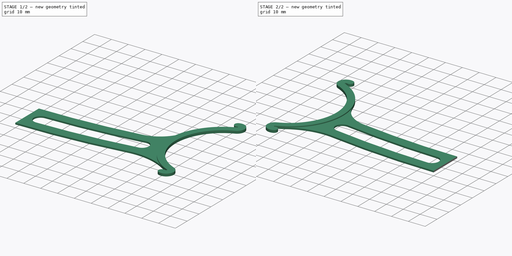
[diagram: build sequence overview — one tinted view per stage of 2, left to right]
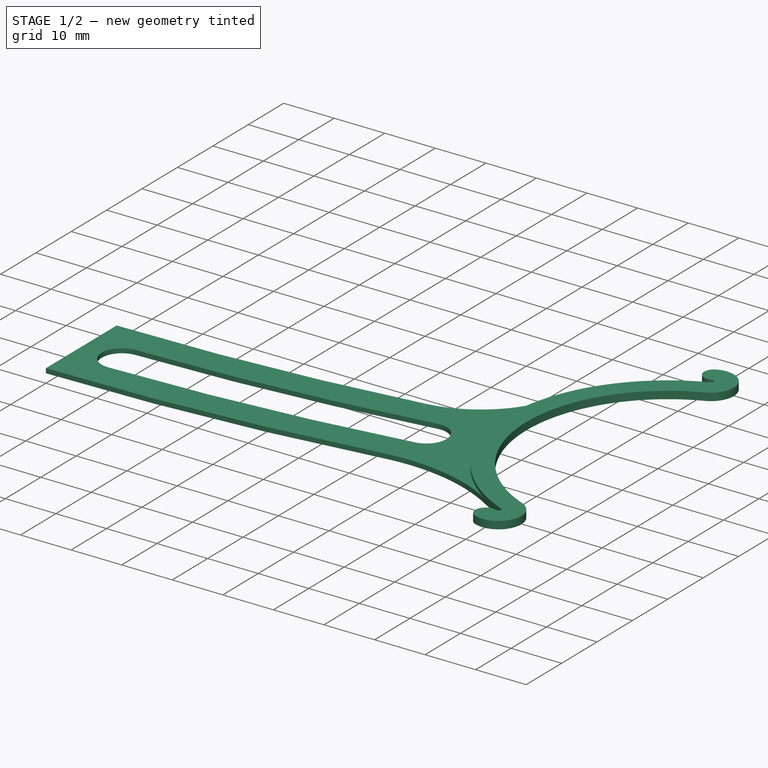
[diagram: stage 1 of 2 — iso view after this stage's code; geometry added in this stage tinted green]
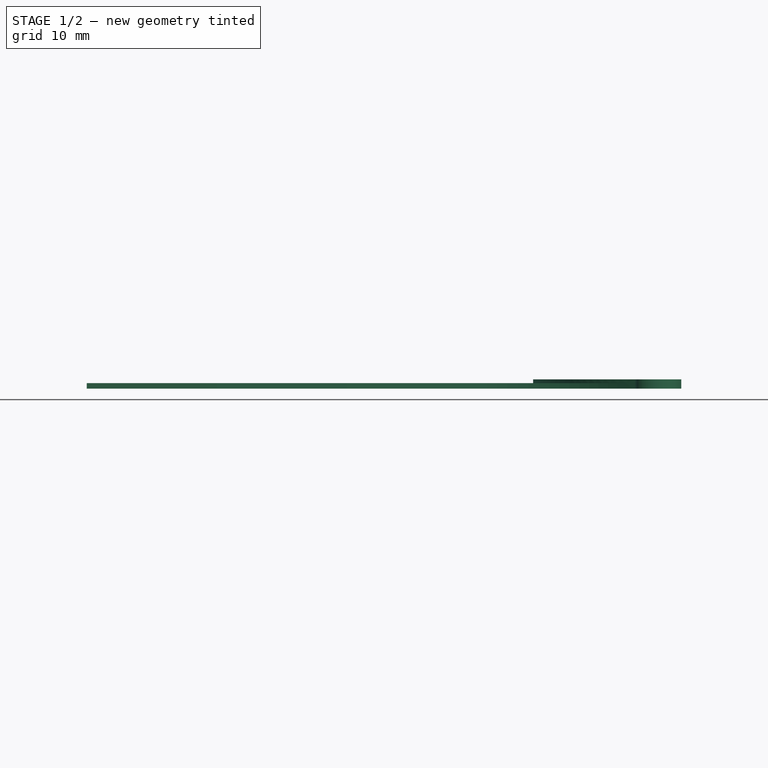
[diagram: stage 1 of 2 — front view after this stage's code; geometry added in this stage tinted green]
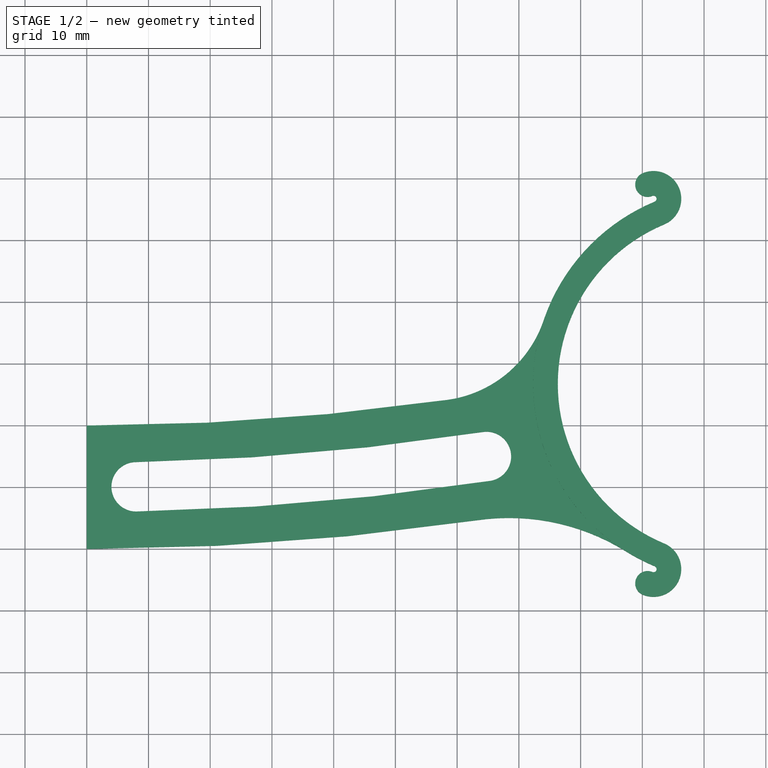
[diagram: stage 1 of 2 — top view after this stage's code; geometry added in this stage tinted green]
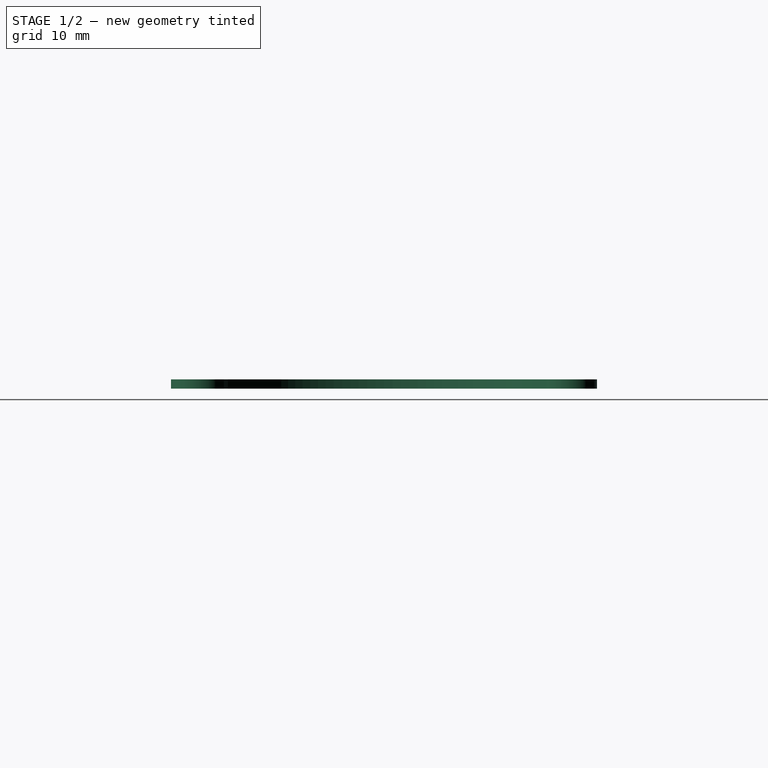
[diagram: stage 1 of 2 — right view after this stage's code; geometry added in this stage tinted green]
FCSTD DOCUMENT  (FreeCAD 0.20R29177 (Git))
Label: AOS
License: All rights reserved
LicenseURL: http://en.wikipedia.org/wiki/All_rights_reserved
objects: Sketcher::SketchObject×2, PartDesign::Pad×2, PartDesign::Body×1, Part::Mirroring×1
note: 8 computed .brp shape members not serialized (recipe doc carries the construction recipe); baked Part::Feature solids carry a one-line shape summary decoded from their .brp

FEATURE [Sketcher::SketchObject] Sketch
  FullyConstrained = false
  MapMode = 5
  Support = -> [XY_Plane]
  sketch-geometry (11):
    g0: ArcOfCircle CenterX=104.308 CenterY=26.7325 CenterZ=0 NormalX=0 NormalY=0 NormalZ=1 AngleXU=0 Radius=32 StartAngle=1.96559 EndAngle=4.3176
    g1: ArcOfCircle CenterX=91.8077 CenterY=56.7325 CenterZ=0 NormalX=0 NormalY=0 NormalZ=1 AngleXU=0 Radius=0.5 StartAngle=5.10718 EndAngle=8.24877
    g2: ArcOfCircle CenterX=90.8462 CenterY=59.0402 CenterZ=0 NormalX=0 NormalY=0 NormalZ=1 AngleXU=0 Radius=2 StartAngle=1.96559 EndAngle=5.10718
    g3: ArcOfCircle CenterX=104.308 CenterY=26.7325 CenterZ=0 NormalX=0 NormalY=0 NormalZ=1 AngleXU=0 Radius=28 StartAngle=1.96559 EndAngle=4.3176
    g4: ArcOfCircle CenterX=91.8077 CenterY=56.7325 CenterZ=0 NormalX=0 NormalY=0 NormalZ=1 AngleXU=0 Radius=4.5 StartAngle=5.10718 EndAngle=8.24877
    g5: ArcOfCircle CenterX=91.8077 CenterY=-3.26754 CenterZ=0 NormalX=0 NormalY=0 NormalZ=1 AngleXU=0 Radius=0.5 StartAngle=4.3176 EndAngle=7.45919
    g6: ArcOfCircle CenterX=90.8462 CenterY=-5.57523 CenterZ=0 NormalX=0 NormalY=0 NormalZ=1 AngleXU=0 Radius=2 StartAngle=1.17601 EndAngle=4.3176
    g7: ArcOfCircle CenterX=91.8077 CenterY=-3.26754 CenterZ=0 NormalX=0 NormalY=0 NormalZ=1 AngleXU=0 Radius=4.5 StartAngle=4.3176 EndAngle=7.45919
    g8: LineSegment StartX=91.8077 StartY=-3.26754 StartZ=0 EndX=91.8077 EndY=56.7325 EndZ=0
    g9: LineSegment StartX=90.0769 StartY=60.8863 StartZ=0 EndX=93.5385 EndY=52.5786 EndZ=0
    g10: LineSegment StartX=90.0769 StartY=-7.42139 StartZ=0 EndX=93.5385 EndY=0.886306 EndZ=0
  constraints (26):
    c: DistanceX(g-1,g0) = 92
    c: Tangent(g2,g1) = 1.5708
    c: Tangent(g1,g0) = 1.5708
    c: Coincident(g3,g0)
    c: Tangent(g4,g2) = -1.5708
    c: Radius(g1) = 0.5
    c: Tangent(g3,g4) = 1.5708
    c: Radius(g2) = 2
    c: Tangent(g6,g7) = -1.5708
    c: Tangent(g5,g6) = 1.5708
    c: Tangent(g5,g0) = 1.5708
    c: Tangent(g7,g3) = 1.5708
    c: Radius(g5) = 0.5
    c: Coincident(g1,g4)
    c: Coincident(g5,g7)
    c: Radius(g0) = 32
    c: Coincident(g8,g1)
    c: Vertical(g8)
    c: DistanceY(g5,g1) = 60
    c: Coincident(g8,g5)
    c: Coincident(g9,g2)
    c: Coincident(g9,g3)
    c: PointOnObject(g1,g9)
    c: Coincident(g10,g6)
    c: Coincident(g10,g3)
    c: PointOnObject(g6,g10)
FEATURE [PartDesign::Pad] Pad
  AllowMultiFace = false
  Direction = (1,1,1)
  Length = 1.5
  Length2 = 100
  Profile = -> Sketch
  Type = 0
FEATURE [Sketcher::SketchObject] Sketch001
  ExternalGeometry = -> [Pad]
  FullyConstrained = false
  MapMode = 5
  sketch-geometry (11):
    g0: ArcOfCircle CenterX=0 CenterY=432.441 CenterZ=0 NormalX=0 NormalY=0 NormalZ=1 AngleXU=0 Radius=412.441 StartAngle=4.71239 EndAngle=4.85471
    g1: ArcOfCircle CenterX=0 CenterY=432.441 CenterZ=0 NormalX=0 NormalY=0 NormalZ=1 AngleXU=0 Radius=432.441 StartAngle=4.71239 EndAngle=4.85897
    g2: LineSegment StartX=-7.58e-14 StartY=20 StartZ=0 EndX=-7.94e-14 EndY=0 EndZ=0
    g3: ArcOfCircle CenterX=55.7653 CenterY=43.2508 CenterZ=0 NormalX=0 NormalY=0 NormalZ=1 AngleXU=0 Radius=19.276 StartAngle=4.85471 EndAngle=5.95519
    g4: ArcOfCircle CenterX=68.392 CenterY=-30.8094 CenterZ=0 NormalX=0 NormalY=0 NormalZ=1 AngleXU=0 Radius=35.8308 StartAngle=1.0128 EndAngle=1.71737
    g5: ArcOfCircle CenterX=0 CenterY=432.441 CenterZ=0 NormalX=0 NormalY=0 NormalZ=1 AngleXU=0 Radius=426.441 StartAngle=4.73133 EndAngle=4.86627
    g6: ArcOfCircle CenterX=0 CenterY=432.441 CenterZ=0 NormalX=0 NormalY=0 NormalZ=1 AngleXU=0 Radius=418.441 StartAngle=4.73133 EndAngle=4.86627
    g7: ArcOfCircle CenterX=8 CenterY=10.0758 CenterZ=0 NormalX=0 NormalY=0 NormalZ=1 AngleXU=0 Radius=4 StartAngle=1.58974 EndAngle=4.73133
    g8: ArcOfCircle CenterX=64.7475 CenterY=14.9914 CenterZ=0 NormalX=0 NormalY=0 NormalZ=1 AngleXU=0 Radius=4 StartAngle=4.86627 EndAngle=8.00786
    g9: LineSegment StartX=7.81062 StartY=20.074 StartZ=0 EndX=7.92425 EndY=14.075 EndZ=0
    g10: ArcOfCircle CenterX=104.308 CenterY=26.7325 CenterZ=0 NormalX=0 NormalY=0 NormalZ=1 AngleXU=0 Radius=32 StartAngle=2.8136 EndAngle=4.15439
  constraints (26):
    c: Coincident(g1,g0)
    c: PointOnObject(g0,g-2)
    c: Coincident(g-1,g1)
    c: DistanceY(g1,g0) = 20
    c: PointOnObject(g0,g-2)
    c: Coincident(g2,g0)
    c: Tangent(g3,g-3) = 1.5708
    c: Tangent(g3,g0) = -1.5708
    c: Tangent(g4,g1) = 1.5708
    c: Tangent(g4,g-3) = 1.5708
    c: Coincident(g0,g5)
    c: Tangent(g7,g5) = -1.5708
    c: Tangent(g7,g6) = 1.5708
    c: Radius(g7) = 4
    c: Tangent(g8,g6) = 1.5708
    c: Tangent(g8,g5) = -1.5708
    c: Coincident(g6,g0)
    c: Coincident(g9,g6)
    c: PointOnObject(g9,g0)
    c: Perpendicular(g0,g9)
    c: Distance(g9) = 6
    c: DistanceX(g1,g7) = 8
    c: Coincident(g10,g-3)
    c: Coincident(g10,g3)
    c: Coincident(g10,g4)
    c: Coincident(g1,g2)
FEATURE [PartDesign::Pad] Pad001
  AllowMultiFace = false
  BaseFeature = -> Pad
  Direction = (1,1,1)
  Length = 0.9
  Length2 = 100
  Profile = -> Sketch001
  Type = 0
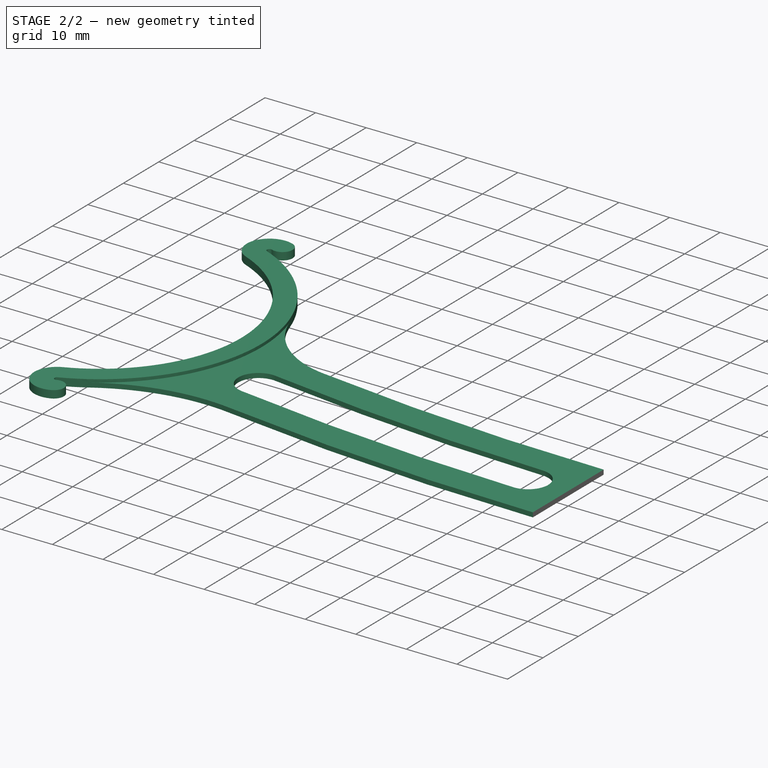
[diagram: stage 2 of 2 — iso view after this stage's code; geometry added in this stage tinted green]
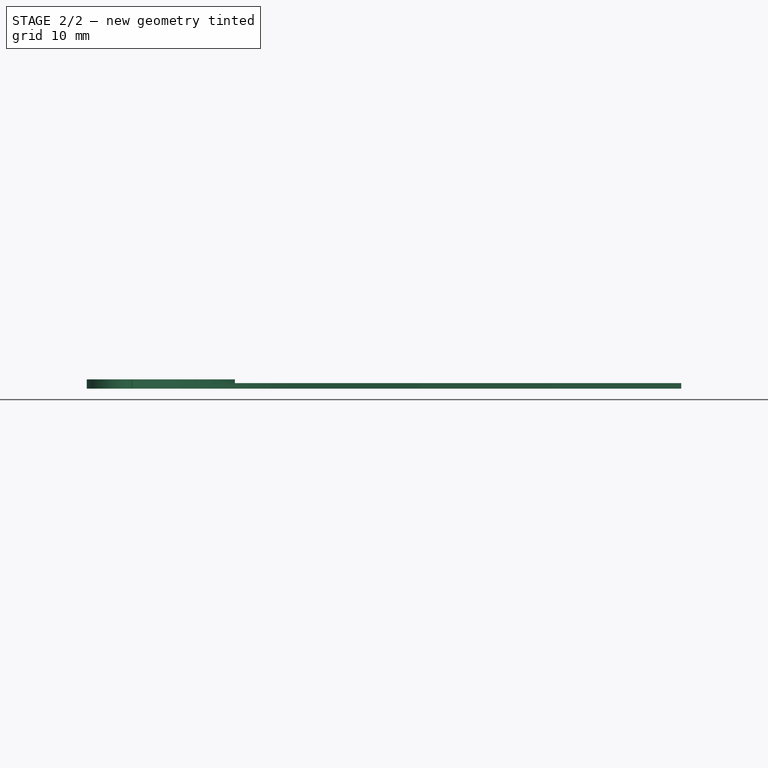
[diagram: stage 2 of 2 — front view after this stage's code; geometry added in this stage tinted green]
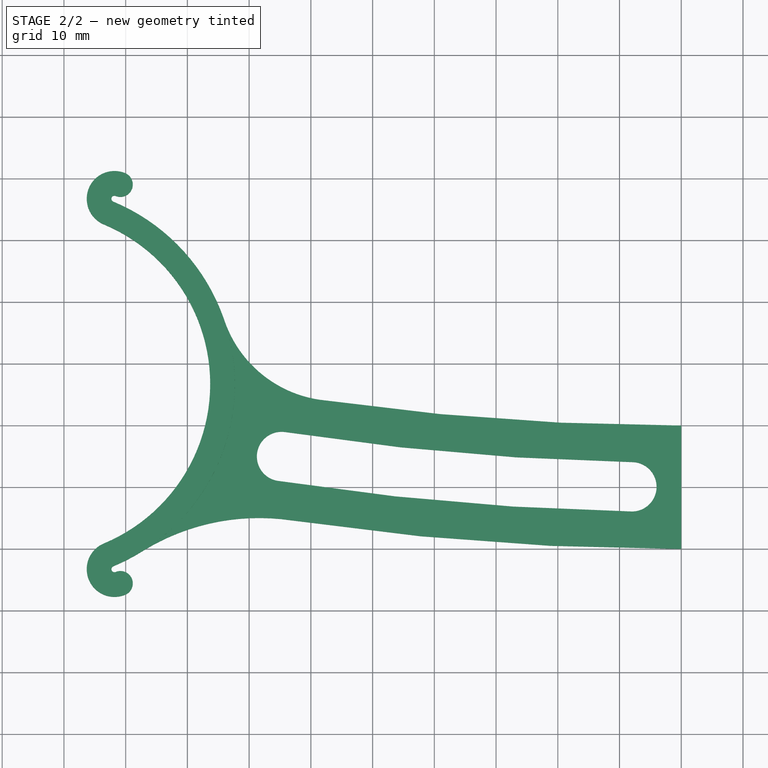
[diagram: stage 2 of 2 — top view after this stage's code; geometry added in this stage tinted green]
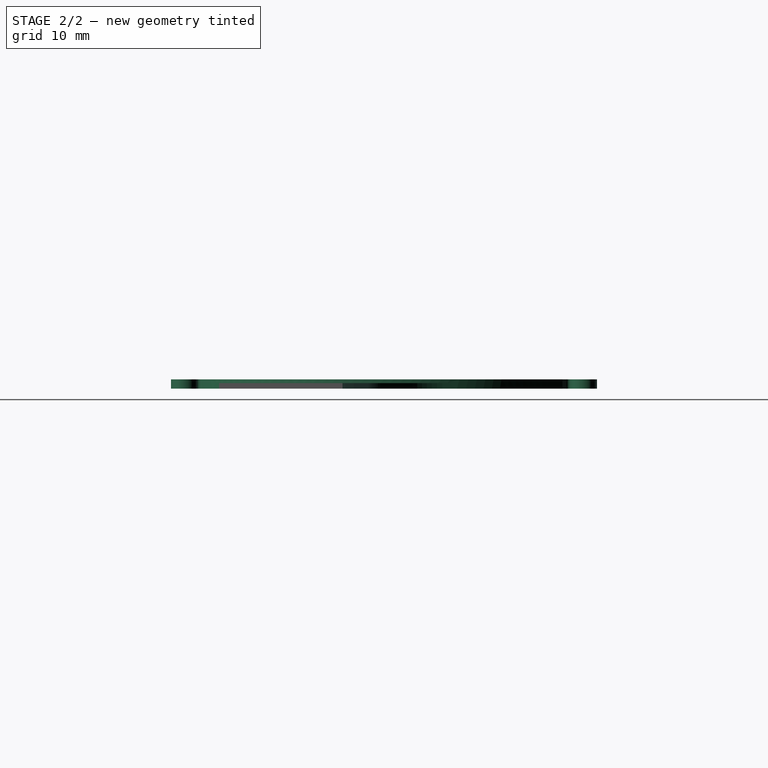
[diagram: stage 2 of 2 — right view after this stage's code; geometry added in this stage tinted green]
FEATURE [PartDesign::Body] Body
  Group = -> [Sketch,Pad,Sketch001,Pad001]
  Origin = -> Origin
  Tip = -> Pad001
FEATURE [Part::Mirroring] Part__Mirroring  label="Body (Mirror #1)"
  Base = (0,0,0)
  Normal = (1,0,0)
  Source = -> Body
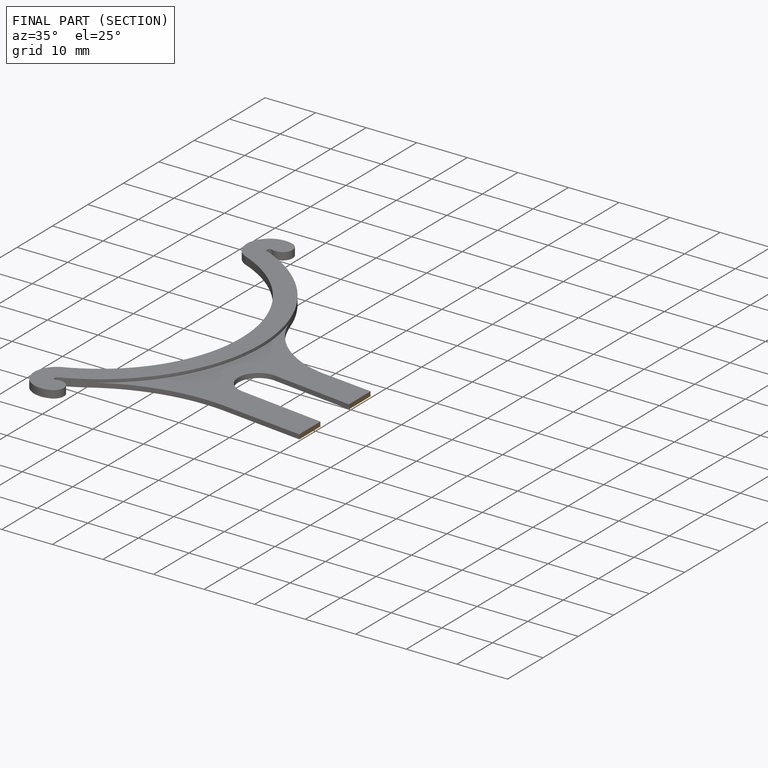
[diagram: finished part — half-section view (interior)]
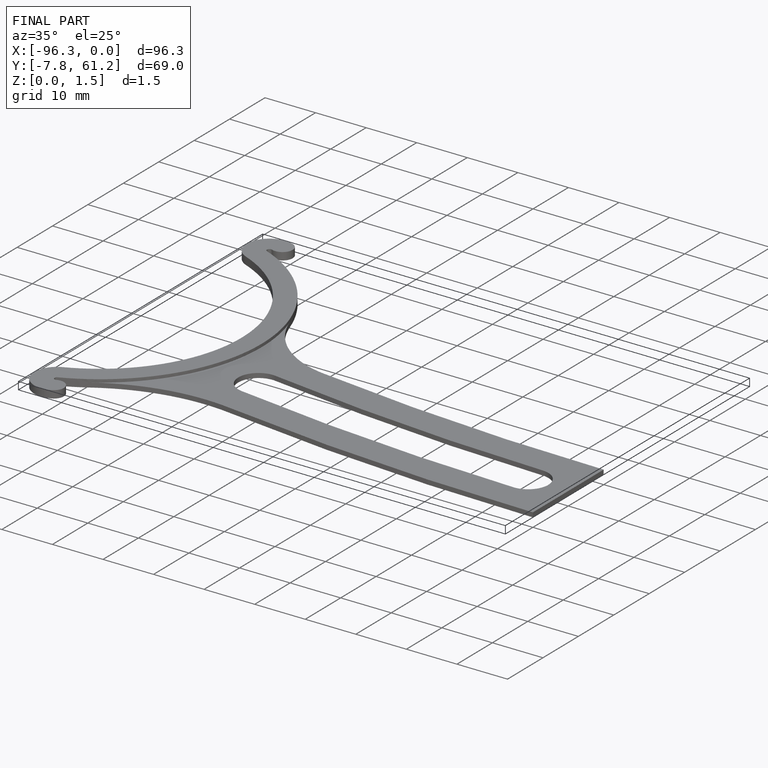
[diagram: finished part — iso view with bounding-box wireframe]
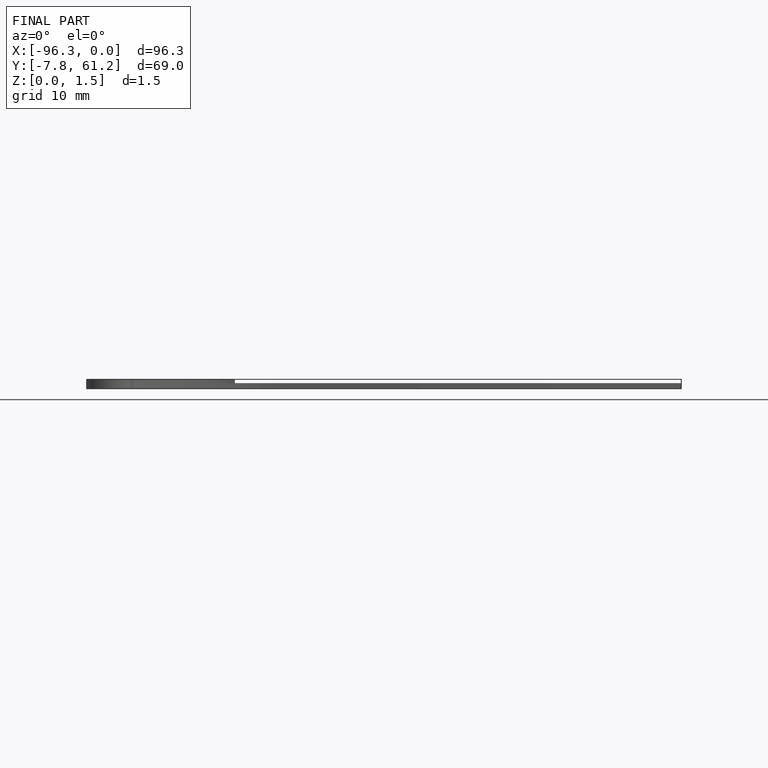
[diagram: finished part — front view with bounding-box wireframe]
